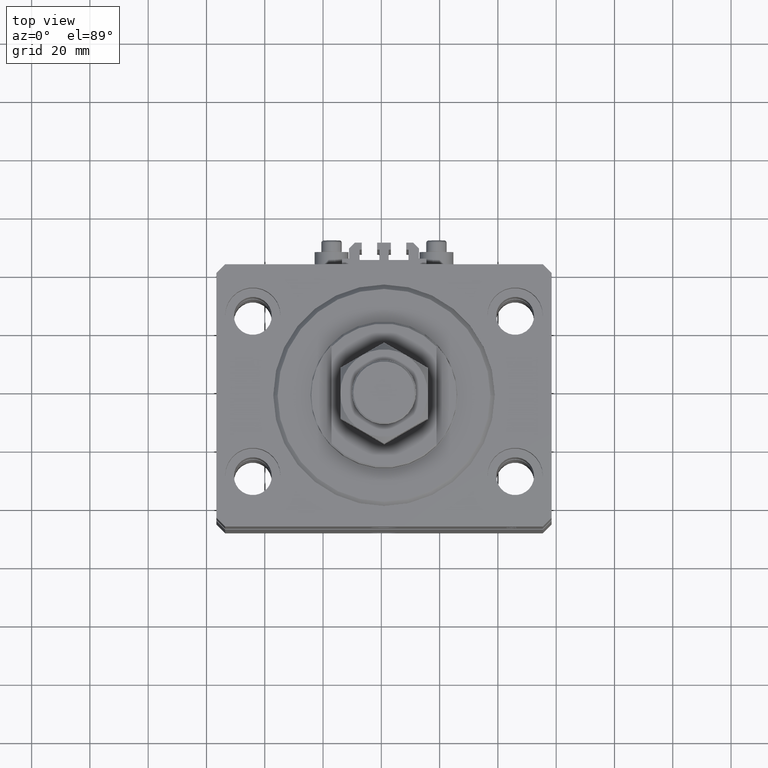
[diagram: clean part render]
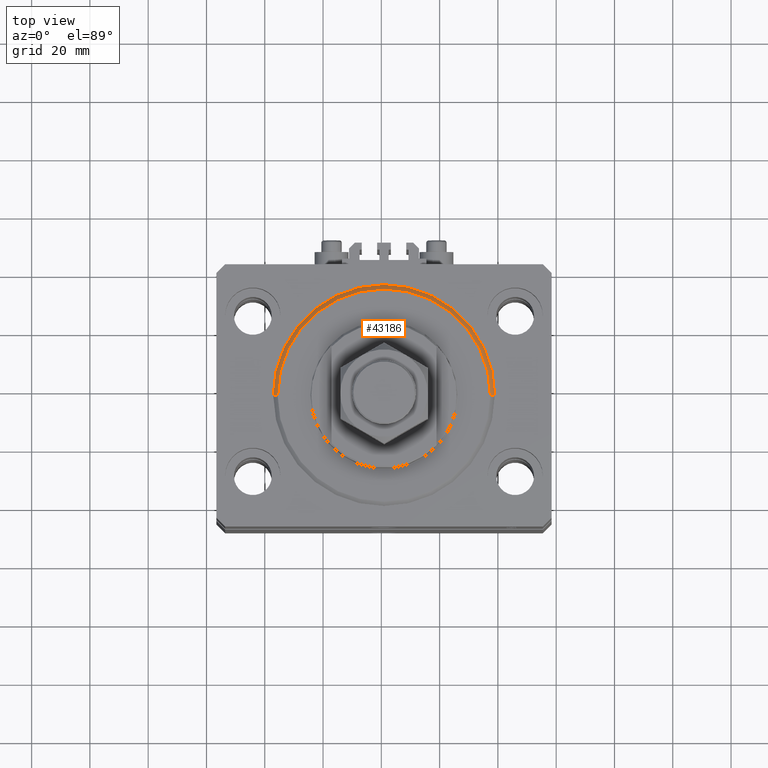
[diagram: same view with one face highlighted and labeled with its STEP entity id]
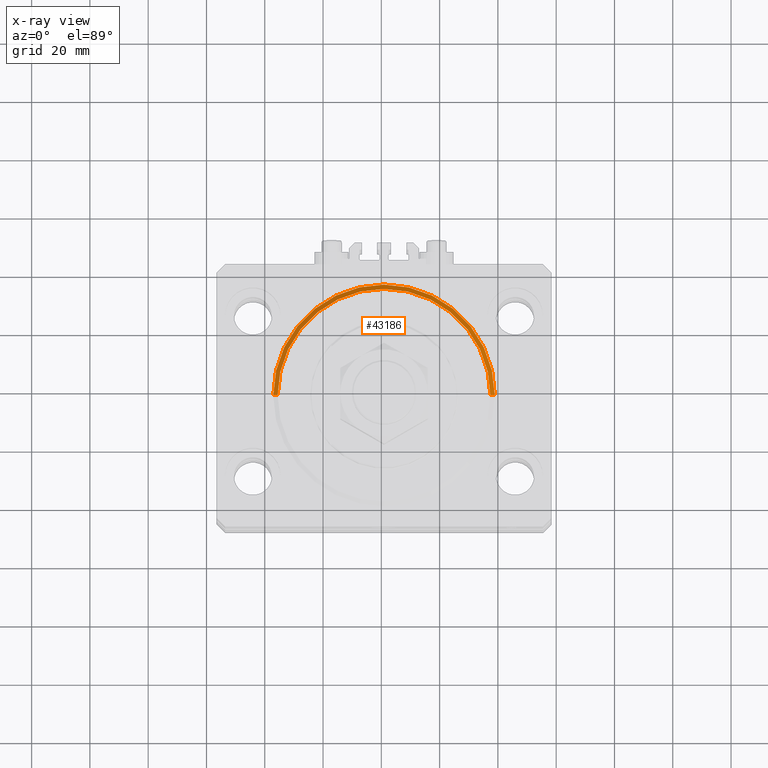
[diagram: x-ray of the same camera — body ghosted, the highlighted face saturated]
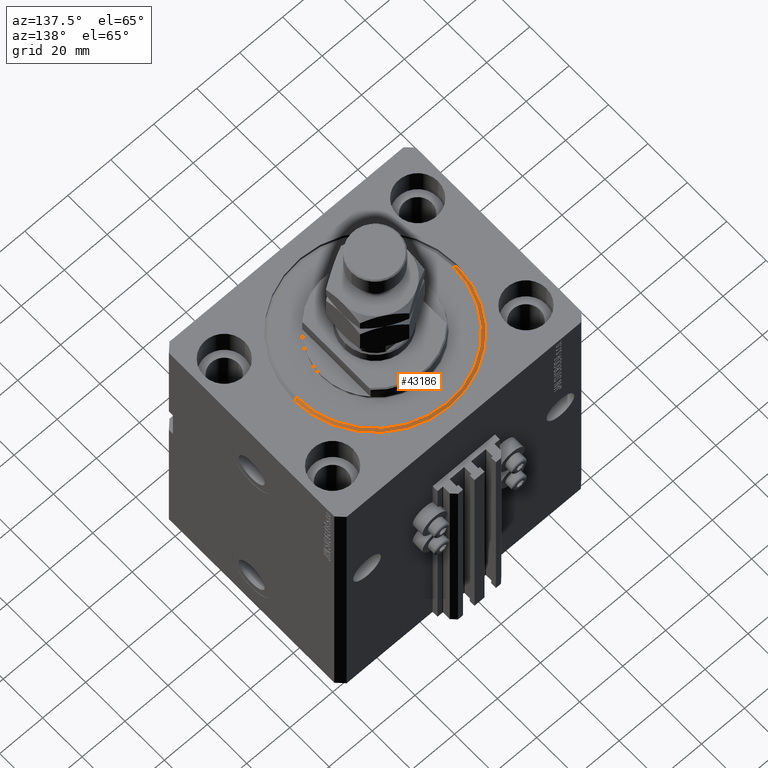
[diagram: same view with one face highlighted and labeled with its STEP entity id]
A machine part, top view. The second image highlights one B-rep face of the part: STEP entity #43186.
The next image is the same camera in x-ray: the body ghosted, the highlighted face saturated — about 0% of this face is hidden behind the body in this view.
A second angle (auxiliary view) of the same face is appended — the face is thin or edge-on in the first view.
In plain terms, the highlighted conical surface has half-angle 45 deg.
Its self-contained STEP definition (entity closure, byte-faithful):
#1144 = CARTESIAN_POINT ( 'NONE',  ( -38.00000000000000000, 0.000000000000000000, 1.499999999999987566 ) ) ;
#1606 = DIRECTION ( 'NONE',  ( 0.7071067811865507924, 0.000000000000000000, 0.7071067811865441310 ) ) ;
#1781 = VERTEX_POINT ( 'NONE', #23769 ) ;
#3721 = AXIS2_PLACEMENT_3D ( 'NONE', #29255, #36708, #9927 ) ;
#6892 = CIRCLE ( 'NONE', #22520, 36.50000000000000000 ) ;
#7763 = EDGE_CURVE ( 'NONE', #1781, #28346, #6892, .T. ) ;
#8601 = CARTESIAN_POINT ( 'NONE',  ( -38.00000000000000000, 4.653657836759941152E-15, 1.499999999999987566 ) ) ;
#9160 = FACE_OUTER_BOUND ( 'NONE', #21943, .T. ) ;
#9927 = DIRECTION ( 'NONE',  ( 1.000000000000000000, 0.000000000000000000, 0.000000000000000000 ) ) ;
#11315 = ORIENTED_EDGE ( 'NONE', *, *, #24662, .F. ) ;
#13183 = CARTESIAN_POINT ( 'NONE',  ( 38.00000000000000000, 0.000000000000000000, 1.499999999999987566 ) ) ;
#13991 = DIRECTION ( 'NONE',  ( 1.000000000000000000, 0.000000000000000000, 0.000000000000000000 ) ) ;
#15232 = CARTESIAN_POINT ( 'NONE',  ( 0.000000000000000000, 0.000000000000000000, 1.499999999999987566 ) ) ;
#16694 = ORIENTED_EDGE ( 'NONE', *, *, #46821, .F. ) ;
#21312 = VERTEX_POINT ( 'NONE', #30391 ) ;
#21943 = EDGE_LOOP ( 'NONE', ( #26633, #28717, #11315, #16694 ) ) ;
#22520 = AXIS2_PLACEMENT_3D ( 'NONE', #49229, #26335, #13991 ) ;
#23205 = DIRECTION ( 'NONE',  ( -0.000000000000000000, -0.000000000000000000, 1.000000000000000000 ) ) ;
#23769 = CARTESIAN_POINT ( 'NONE',  ( -36.50000000000000000, 4.561809326823889791E-15, 0.000000000000000000 ) ) ;
#24662 = EDGE_CURVE ( 'NONE', #21312, #49936, #31964, .T. ) ;
#25419 = CARTESIAN_POINT ( 'NONE',  ( 36.50000000000000000, 0.000000000000000000, 0.000000000000000000 ) ) ;
#26335 = DIRECTION ( 'NONE',  ( -0.000000000000000000, -0.000000000000000000, -1.000000000000000000 ) ) ;
#26633 = ORIENTED_EDGE ( 'NONE', *, *, #7763, .F. ) ;
#28174 = DIRECTION ( 'NONE',  ( -0.7071067811865507924, 8.659560562354972301E-17, 0.7071067811865441310 ) ) ;
#28346 = VERTEX_POINT ( 'NONE', #25419 ) ;
#28717 = ORIENTED_EDGE ( 'NONE', *, *, #43534, .T. ) ;
#29255 = CARTESIAN_POINT ( 'NONE',  ( 0.000000000000000000, 0.000000000000000000, 1.499999999999987566 ) ) ;
#30391 = CARTESIAN_POINT ( 'NONE',  ( 38.00000000000000000, 4.653657836759941941E-15, 1.499999999999987566 ) ) ;
#31964 = CIRCLE ( 'NONE', #45903, 38.00000000000000000 ) ;
#36708 = DIRECTION ( 'NONE',  ( -0.000000000000000000, -0.000000000000000000, 1.000000000000000000 ) ) ;
#38701 = VECTOR ( 'NONE', #1606, 1000.000000000000114 ) ;
#40982 = LINE ( 'NONE', #13183, #38701 ) ;
#43186 = ADVANCED_FACE ( 'NONE', ( #9160 ), #43971, .T. ) ;
#43534 = EDGE_CURVE ( 'NONE', #1781, #49936, #44601, .T. ) ;
#43945 = DIRECTION ( 'NONE',  ( 1.000000000000000000, 0.000000000000000000, 0.000000000000000000 ) ) ;
#43971 = CONICAL_SURFACE ( 'NONE', #3721, 38.00000000000000000, 0.7853981633974529419 ) ;
#44601 = LINE ( 'NONE', #8601, #49217 ) ;
#45903 = AXIS2_PLACEMENT_3D ( 'NONE', #15232, #23205, #43945 ) ;
#46821 = EDGE_CURVE ( 'NONE', #28346, #21312, #40982, .T. ) ;
#49217 = VECTOR ( 'NONE', #28174, 1000.000000000000114 ) ;
#49229 = CARTESIAN_POINT ( 'NONE',  ( 0.000000000000000000, 0.000000000000000000, 0.000000000000000000 ) ) ;
#49936 = VERTEX_POINT ( 'NONE', #1144 ) ;